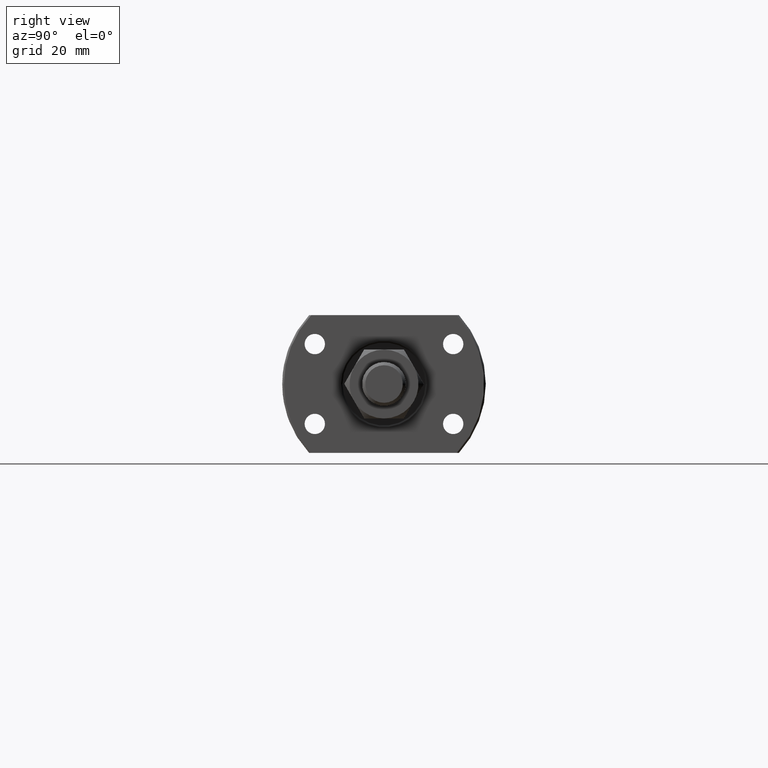
[diagram: clean part render]
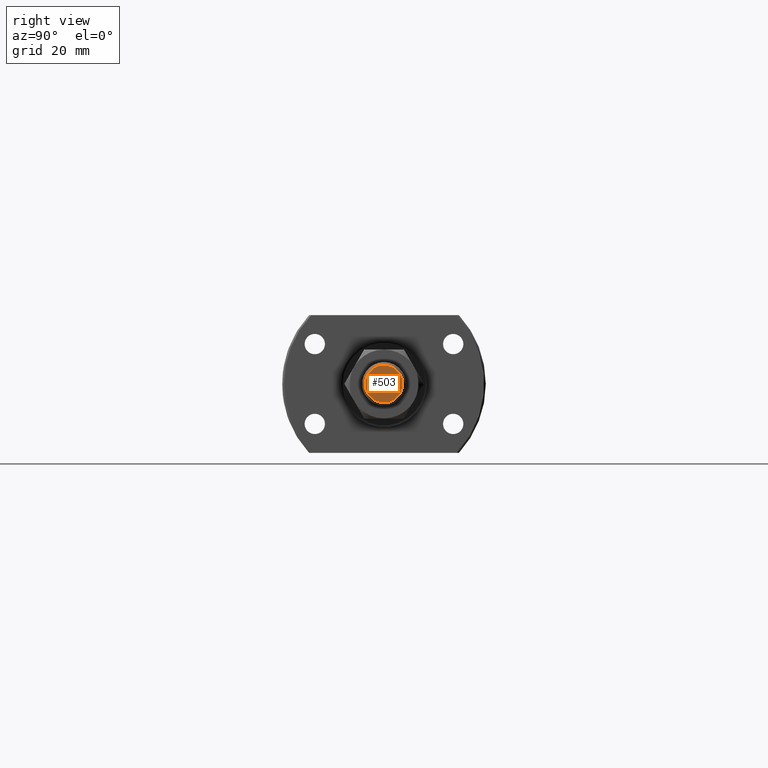
[diagram: same view with one face highlighted and labeled with its STEP entity id]
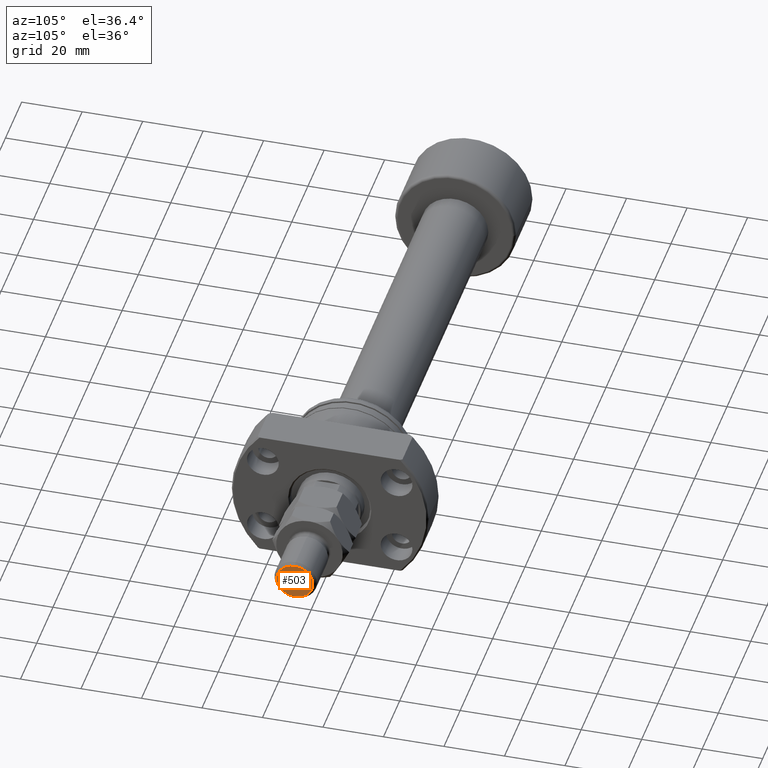
[diagram: same view with one face highlighted and labeled with its STEP entity id]
A machine part, right view. The second image highlights one B-rep face of the part: STEP entity #503.
A second angle (auxiliary view) of the same face is appended — the face is thin or edge-on in the first view.
In plain terms, the highlighted planar face has unit normal (1, 0, 0).
Its self-contained STEP definition (entity closure, byte-faithful):
#123 = FACE_OUTER_BOUND ( 'NONE', #2132, .T. ) ;
#170 = DIRECTION ( 'NONE',  ( 1.000000000000000000, 0.000000000000000000, -0.000000000000000000 ) ) ;
#369 = EDGE_CURVE ( 'NONE', #4238, #3547, #4424, .T. ) ;
#503 = ADVANCED_FACE ( 'NONE', ( #123 ), #1198, .T. ) ;
#690 = ORIENTED_EDGE ( 'NONE', *, *, #4239, .T. ) ;
#967 = CARTESIAN_POINT ( 'NONE',  ( -5.999999999999998224, 0.000000000000000000, 37.00000000000000000 ) ) ;
#1026 = AXIS2_PLACEMENT_3D ( 'NONE', #3502, #1591, #170 ) ;
#1144 = CARTESIAN_POINT ( 'NONE',  ( 5.999999999999998224, 7.960204194457795477E-16, 37.00000000000000000 ) ) ;
#1198 = PLANE ( 'NONE',  #1026 ) ;
#1591 = DIRECTION ( 'NONE',  ( 0.000000000000000000, 0.000000000000000000, 1.000000000000000000 ) ) ;
#1612 = ORIENTED_EDGE ( 'NONE', *, *, #369, .T. ) ;
#2113 = AXIS2_PLACEMENT_3D ( 'NONE', #4515, #3403, #2288 ) ;
#2132 = EDGE_LOOP ( 'NONE', ( #690, #1612 ) ) ;
#2288 = DIRECTION ( 'NONE',  ( 1.000000000000000000, 0.000000000000000000, 0.000000000000000000 ) ) ;
#2597 = CARTESIAN_POINT ( 'NONE',  ( 0.000000000000000000, 0.000000000000000000, 37.00000000000000000 ) ) ;
#3062 = AXIS2_PLACEMENT_3D ( 'NONE', #2597, #4776, #4088 ) ;
#3403 = DIRECTION ( 'NONE',  ( 0.000000000000000000, 0.000000000000000000, 1.000000000000000000 ) ) ;
#3453 = CIRCLE ( 'NONE', #3062, 5.999999999999998224 ) ;
#3502 = CARTESIAN_POINT ( 'NONE',  ( 0.000000000000000000, 0.000000000000000000, 37.00000000000000000 ) ) ;
#3547 = VERTEX_POINT ( 'NONE', #967 ) ;
#4088 = DIRECTION ( 'NONE',  ( 1.000000000000000000, 0.000000000000000000, 0.000000000000000000 ) ) ;
#4238 = VERTEX_POINT ( 'NONE', #1144 ) ;
#4239 = EDGE_CURVE ( 'NONE', #3547, #4238, #3453, .T. ) ;
#4424 = CIRCLE ( 'NONE', #2113, 5.999999999999998224 ) ;
#4515 = CARTESIAN_POINT ( 'NONE',  ( 0.000000000000000000, 0.000000000000000000, 37.00000000000000000 ) ) ;
#4776 = DIRECTION ( 'NONE',  ( 0.000000000000000000, 0.000000000000000000, 1.000000000000000000 ) ) ;